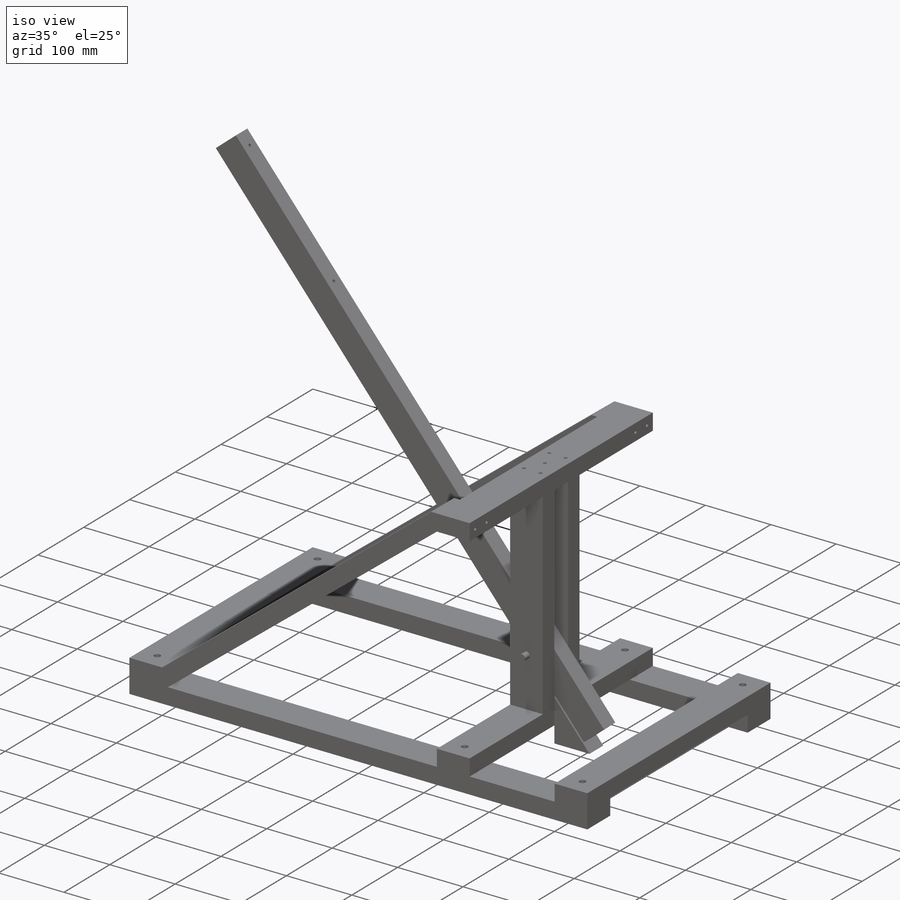
[diagram: iso view]
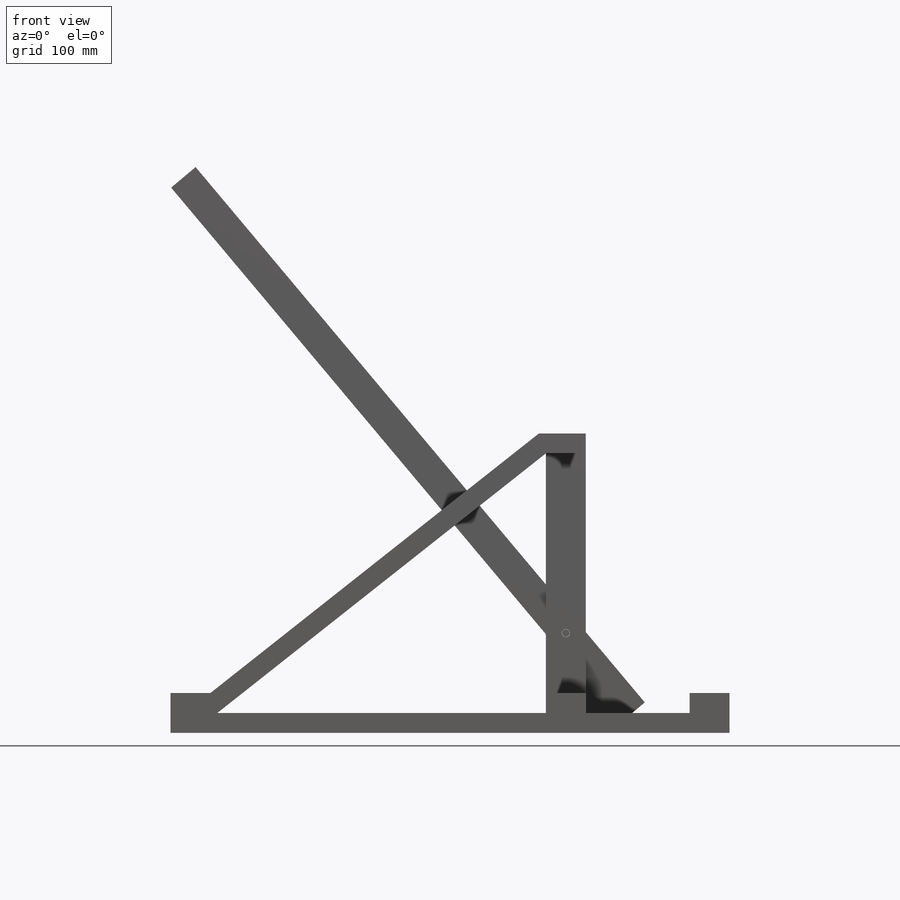
[diagram: front view]
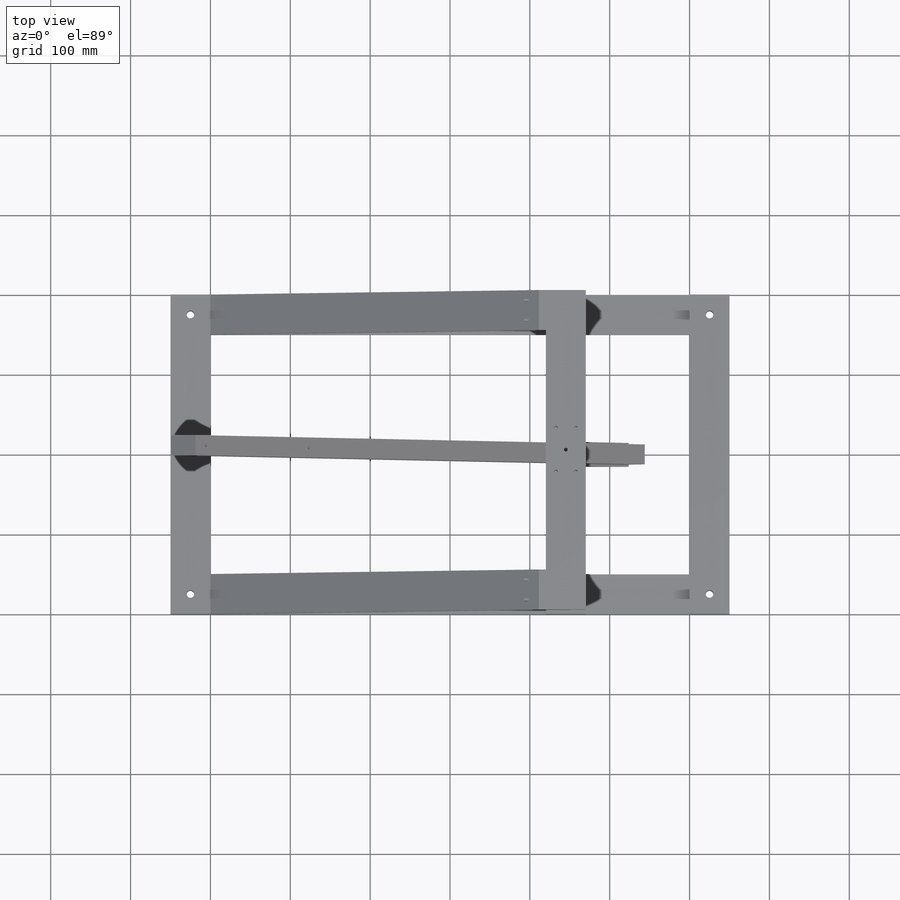
[diagram: top view]
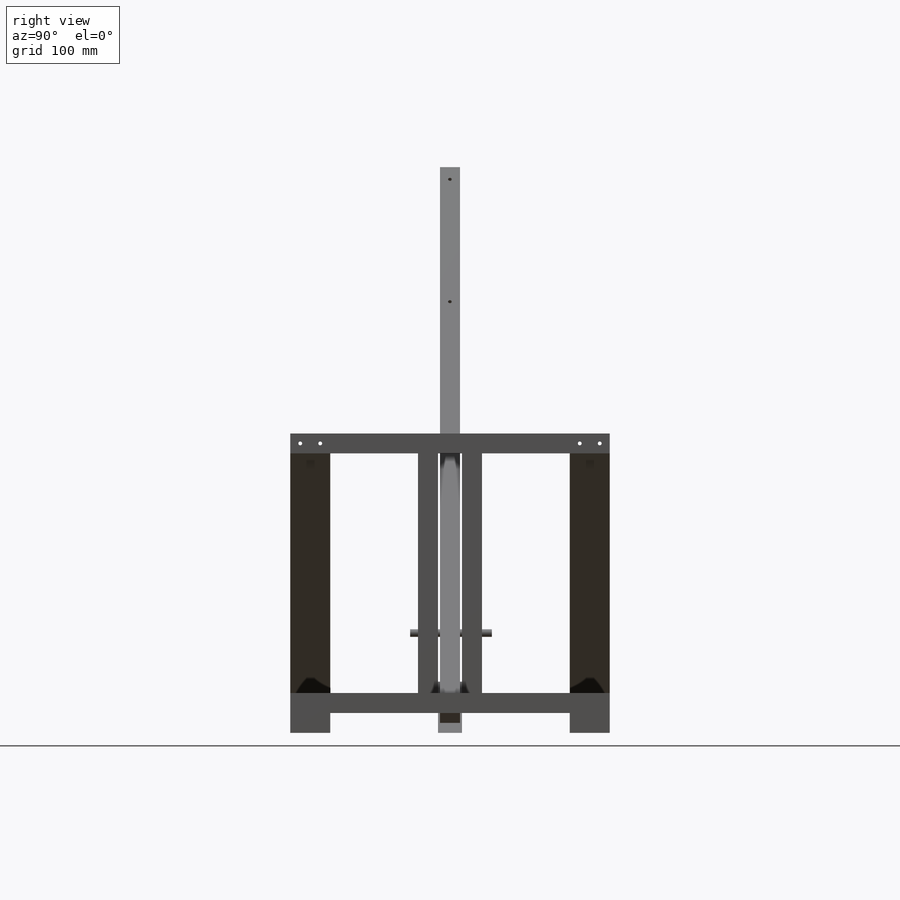
[diagram: right view]
SOLIDWORKS PART (.sldprt)
format: sldprt  version: not decoded by parser v0  size: 727,552 bytes
history: native  units: mm
features: sketch x16, extrude x8, cut_extrude x8, plane x3, material x1, mirror x1 + 9 further entries (+9 scaffold rows collapsed)
feature tree (55):
  scaffold x9  (default folders/planes/origin — collapsed)
  material  "Pino"
  "POS. 02"
  "POS. 03"
  "POS. 04"
  "POS. 05"
  "POS. 06"
  "POS. 07"
  "POS. 08"
  "POS. 09"
  "POS. 10"
  plane  "Alzado"
  plane  "Planta"
  plane  "Vista lateral"
  sketch  "Croquis2"  dims[D1=400.0mm D2=700.0mm D3=50.0mm]
  extrude  "Saliente-Extruir1"  Depth=25mm
  sketch  "Croquis3"  dims[D1=50.0mm D2=120.0mm]
  extrude  "Saliente-Extruir2"  Depth=25mm
  sketch  "Croquis5"  dims[D1=30.0mm D2=25.0mm]
  extrude  "Saliente-Extruir3"  Depth=300mm
  sketch  "Croquis6"  dims[D1=0.0mm]
  extrude  "Saliente-Extruir4"  Depth=25mm
  sketch  "Croquis7"  dims[D1=25.0mm D2=~4.257432mm]
  extrude  "Saliente-Extruir5"  Depth=50mm
  mirror  "Simetría2"
  sketch  "Croquis8"  dims[c1.D1=100.0mm c1.D2=700.0mm c2.D2=50.0deg c2.D3=40.0mm c2.D4=950.0mm c2.D5=~708.558862mm]
  extrude  "Saliente-Extruir6"  Depth=15mm
  sketch  "Croquis9"  dims[D1=10.0mm]
  extrude  "Saliente-Extruir7"  Depth=12.5mm
  sketch  "Croquis10"  dims[D1=10.0mm]
  cut_extrude  "Cortar-Extruir1"  [1 undecoded]
  sketch  "Croquis11"  dims[D1=9.525mm]
  extrude  "Saliente-Extruir8"  Depth=10mm
  sketch  "Croquis12"  dims[D1=9.525mm]
  cut_extrude  "Cortar-Extruir2"  [1 undecoded]
  sketch  "Croquis13"  dims[D1=4.7625mm D2=12.5mm D3=12.5mm]
  cut_extrude  "Cortar-Extruir3"  [1 undecoded]
  sketch  "Croquis14"  dims[D2=4.7625mm D1=12.5mm D3=12.5mm]
  cut_extrude  "Cortar-Extruir4"  [1 undecoded]
  sketch  "Croquis15"  dims[c1.D2=~6.806865mm c1.D3=4.7625mm c1.D1=7.5mm c2.D2=7.5mm]
  cut_extrude  "Cortar-Extruir5"  [1 undecoded]
  sketch  "Croquis16"  dims[c1.D1=~13.259933mm c1.D2=25.0mm c1.D3=4.7625mm c2.D1=20.0mm c2.D2=200.0mm]
  cut_extrude  "Cortar-Extruir6"  [1 undecoded]
  sketch  "Croquis17"  dims[D3=4.7625mm D1=12.5mm D2=12.5mm]
  cut_extrude  "Cortar-Extruir7"  Depth=70mm
  sketch  "Croquis18"
  cut_extrude  "Cortar-Extruir8"  Depth=70mm
decode coverage: 25 of 33 modeling features carry decoded parameters; 9 rows unclassified (native names shown)
note: ~ marks probable driven/reference dimensions
note: 6 parameter values undecoded
summary: no parameter record found for 6 features
note: suppression state not decoded; provenance and decode notes live in map.json
